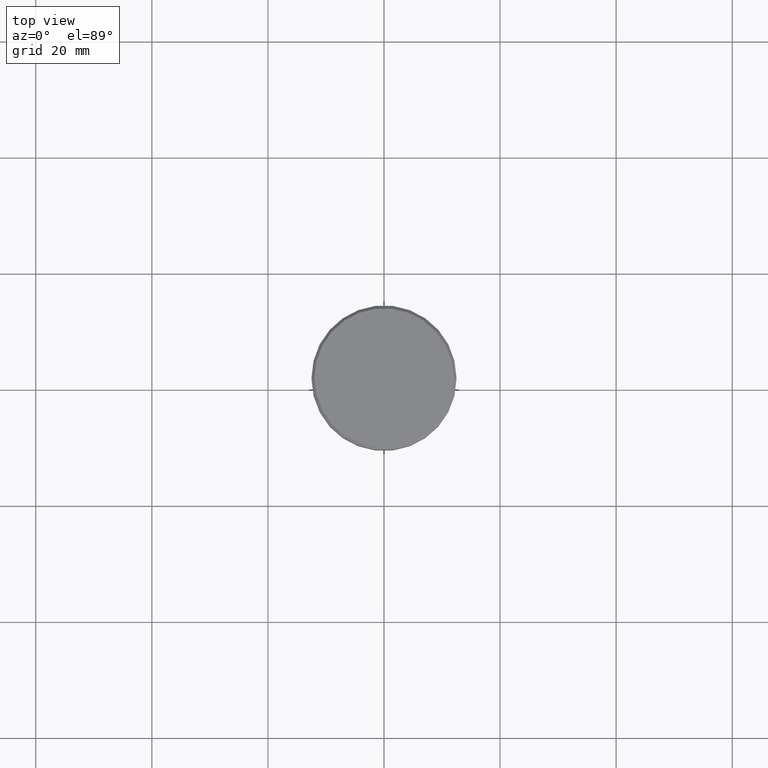
[diagram: clean part render]
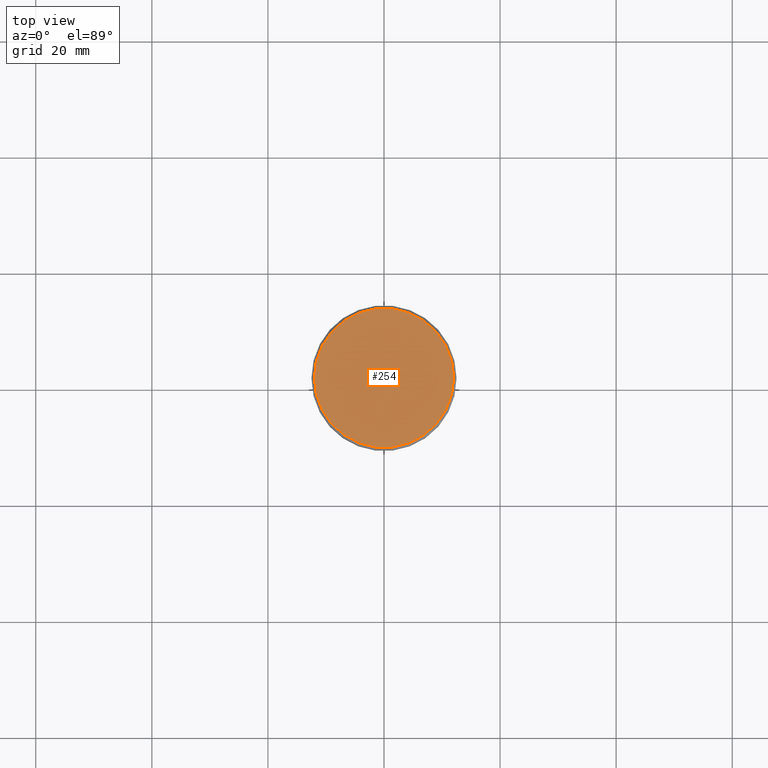
[diagram: same view with one face highlighted and labeled with its STEP entity id]
A machine part, top view. The second image highlights one B-rep face of the part: STEP entity #254.
In plain terms, the highlighted planar face has unit normal (0, -0, 1).
Its self-contained STEP definition (entity closure, byte-faithful):
#33 = DIRECTION ( 'NONE',  ( 0.000000000000000000, -0.000000000000000000, 1.000000000000000000 ) ) ;
#140 = AXIS2_PLACEMENT_3D ( 'NONE', #506, #752, #686 ) ;
#207 = PLANE ( 'NONE',  #276 ) ;
#241 = CIRCLE ( 'NONE', #1081, 11.99999999999999645 ) ;
#249 = CARTESIAN_POINT ( 'NONE',  ( 11.99999999999999645, 1.500192328955507537E-15, 0.000000000000000000 ) ) ;
#254 = ADVANCED_FACE ( 'NONE', ( #1110 ), #207, .T. ) ;
#276 = AXIS2_PLACEMENT_3D ( 'NONE', #571, #33, #1047 ) ;
#309 = ORIENTED_EDGE ( 'NONE', *, *, #821, .T. ) ;
#356 = VERTEX_POINT ( 'NONE', #249 ) ;
#506 = CARTESIAN_POINT ( 'NONE',  ( 0.000000000000000000, 0.000000000000000000, 0.000000000000000000 ) ) ;
#546 = EDGE_CURVE ( 'NONE', #356, #680, #1115, .T. ) ;
#571 = CARTESIAN_POINT ( 'NONE',  ( 0.000000000000000000, 0.000000000000000000, 0.000000000000000000 ) ) ;
#614 = DIRECTION ( 'NONE',  ( 1.000000000000000000, 0.000000000000000000, 0.000000000000000000 ) ) ;
#680 = VERTEX_POINT ( 'NONE', #1144 ) ;
#686 = DIRECTION ( 'NONE',  ( 1.000000000000000000, 0.000000000000000000, 0.000000000000000000 ) ) ;
#721 = CARTESIAN_POINT ( 'NONE',  ( 0.000000000000000000, 0.000000000000000000, 0.000000000000000000 ) ) ;
#752 = DIRECTION ( 'NONE',  ( -0.000000000000000000, -0.000000000000000000, 1.000000000000000000 ) ) ;
#821 = EDGE_CURVE ( 'NONE', #680, #356, #241, .T. ) ;
#998 = EDGE_LOOP ( 'NONE', ( #309, #1133 ) ) ;
#1047 = DIRECTION ( 'NONE',  ( 1.000000000000000000, 0.000000000000000000, 0.000000000000000000 ) ) ;
#1081 = AXIS2_PLACEMENT_3D ( 'NONE', #721, #1084, #614 ) ;
#1084 = DIRECTION ( 'NONE',  ( -0.000000000000000000, -0.000000000000000000, 1.000000000000000000 ) ) ;
#1110 = FACE_OUTER_BOUND ( 'NONE', #998, .T. ) ;
#1115 = CIRCLE ( 'NONE', #140, 11.99999999999999645 ) ;
#1133 = ORIENTED_EDGE ( 'NONE', *, *, #546, .T. ) ;
#1144 = CARTESIAN_POINT ( 'NONE',  ( -11.99999999999999645, 0.000000000000000000, 0.000000000000000000 ) ) ;